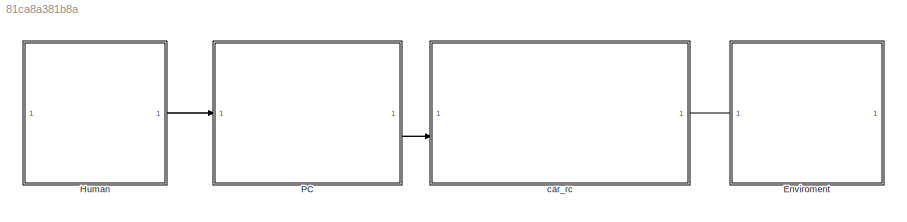
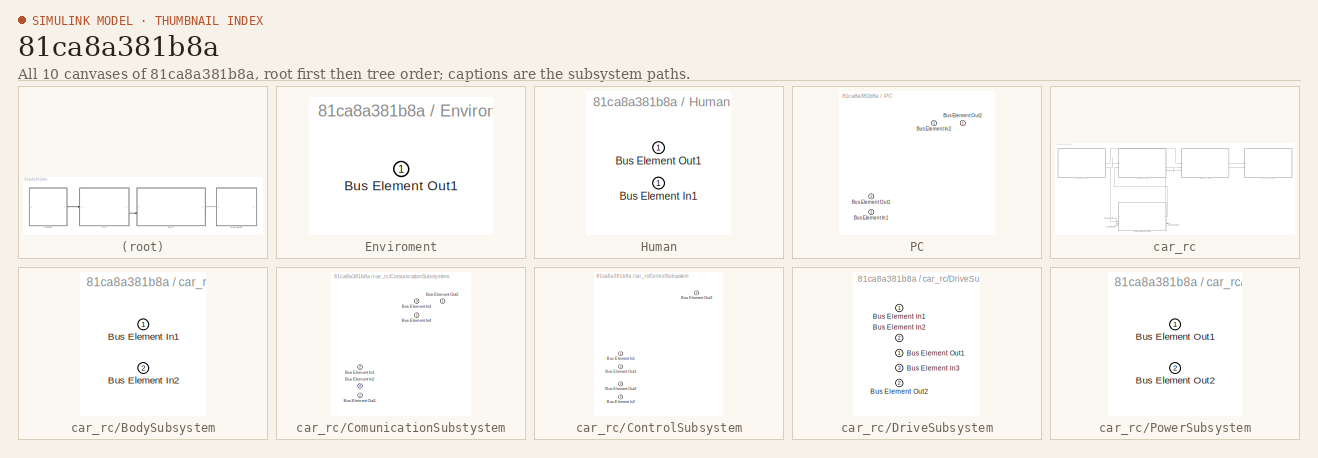
[diagram: thumbnail index - all 10 canvases of the model, root first then tree order]
MODEL slx_81ca8a381b8a
KIND model
CONFIG AbsTol = auto
CONFIG EnableMultiTasking = off
CONFIG FixedStep = auto
CONFIG MaxStep = auto
CONFIG MinStep = auto
CONFIG RelTol = 1e-3
CONFIG SampleTimeConstraint = Unconstrained
CONFIG SolverName = VariableStepAuto
CONFIG StartTime = 0.0
CONFIG StopTime = 10.0
BLOCK [SubSystem] Enviroment
  PortSchema = {"entries":[{"content":{"headerSize":26,"margin":15,"minimumSpacing":25,"sides":[{"content":{"connectorIds":["Out1"]},"type":"ConnectorPlacement.EquallySpacedRectSide","uuid":"a4c63610-ce53-4263-bc32-11f7e141828d"},{"content":{"side":"RIGHT"},"type":"ConnectorPlacement.EquallySpacedRectSide","uuid":"7388023e-6661-4314-a5ba-fe6a68600945"},{"content":{"side":"TOP"},"type":"ConnectorPlacement.Equally...<+247ch>
BLOCK [Outport] Enviroment/Bus Element Out1
BLOCK [SubSystem] Human
  PortSchema = {"entries":[{"content":{"headerSize":26,"margin":15,"minimumSpacing":25,"sides":[{"content":{},"type":"ConnectorPlacement.EquallySpacedRectSide","uuid":"a4c63610-ce53-4263-bc32-11f7e141828d"},{"content":{"connectorIds":["Out1","In1"],"side":"RIGHT"},"type":"ConnectorPlacement.EquallySpacedRectSide","uuid":"7388023e-6661-4314-a5ba-fe6a68600945"},{"content":{"side":"TOP"},"type":"ConnectorPlacement....<+254ch>
BLOCK [Inport] Human/Bus Element In1
BLOCK [Outport] Human/Bus Element Out1
BLOCK [SubSystem] PC
  PortSchema = {"entries":[{"content":{"headerSize":26,"margin":15,"minimumSpacing":25,"sides":[{"content":{"connectorIds":["In1","Out1"]},"type":"ConnectorPlacement.EquallySpacedRectSide","uuid":"a4c63610-ce53-4263-bc32-11f7e141828d"},{"content":{"connectorIds":["Out2","In2"],"side":"RIGHT"},"type":"ConnectorPlacement.EquallySpacedRectSide","uuid":"7388023e-6661-4314-a5ba-fe6a68600945"},{"content":{"side":"TOP"...<+409ch>
BLOCK [Inport] PC/Bus Element In1
  Port = 2
BLOCK [Inport] PC/Bus Element In2
BLOCK [Outport] PC/Bus Element Out1
  Port = 2
BLOCK [Outport] PC/Bus Element Out2
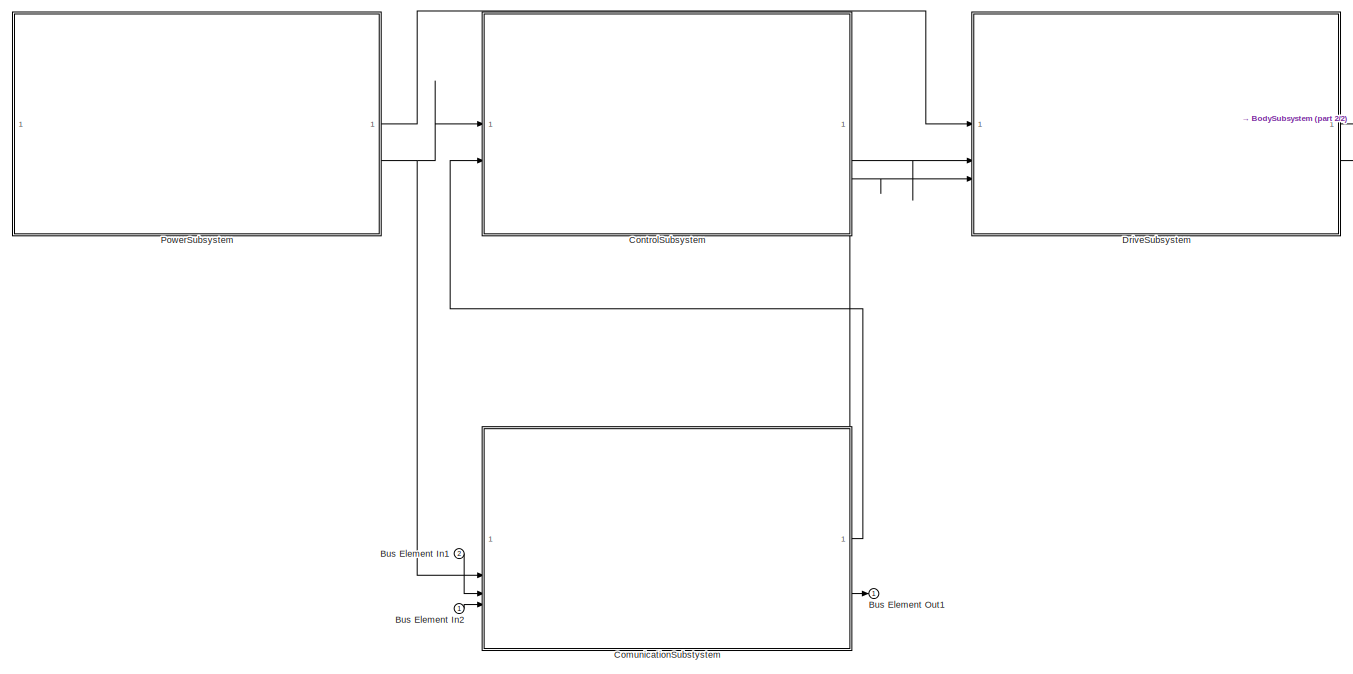
[diagram: car_rc - part 1/2, most of the canvas]
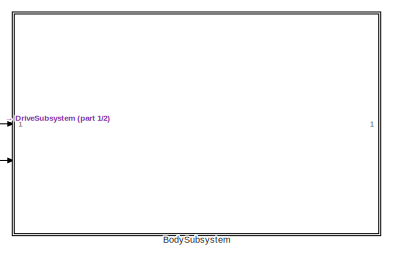
[diagram: car_rc - part 2/2, top right region]
BLOCK [SubSystem] car_rc
  PortSchema = {"entries":[{"content":{"headerSize":26,"margin":15,"minimumSpacing":25,"sides":[{"content":{"connectorIds":["In2","Out1"]},"type":"ConnectorPlacement.EquallySpacedRectSide","uuid":"a4c63610-ce53-4263-bc32-11f7e141828d"},{"content":{"connectorIds":["In1"],"side":"RIGHT"},"type":"ConnectorPlacement.EquallySpacedRectSide","uuid":"7388023e-6661-4314-a5ba-fe6a68600945"},{"content":{"side":"TOP"},"type...<+402ch>
BLOCK [SubSystem] car_rc/BodySubsystem
  PortSchema = {"entries":[{"content":{"headerSize":26,"margin":15,"minimumSpacing":25,"sides":[{"content":{"connectorIds":["In1","In2"]},"type":"ConnectorPlacement.EquallySpacedRectSide","uuid":"a4c63610-ce53-4263-bc32-11f7e141828d"},{"content":{"side":"RIGHT"},"type":"ConnectorPlacement.EquallySpacedRectSide","uuid":"7388023e-6661-4314-a5ba-fe6a68600945"},{"content":{"side":"TOP"},"type":"ConnectorPlacement.Eq...<+252ch>
BLOCK [Inport] car_rc/BodySubsystem/Bus Element In1
BLOCK [Inport] car_rc/BodySubsystem/Bus Element In2
  Port = 2
BLOCK [Inport] car_rc/Bus Element In1
  Port = 2
BLOCK [Inport] car_rc/Bus Element In2
BLOCK [Outport] car_rc/Bus Element Out1
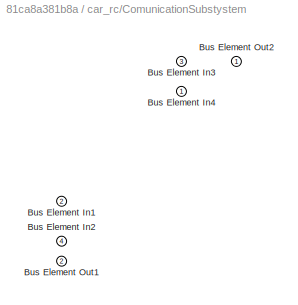
BLOCK [SubSystem] car_rc/ComunicationSubstystem
  PortSchema = {"entries":[{"content":{"headerSize":26,"margin":15,"minimumSpacing":25,"sides":[{"content":{"connectorIds":["In2","In3","In4"]},"type":"ConnectorPlacement.EquallySpacedRectSide","uuid":"a4c63610-ce53-4263-bc32-11f7e141828d"},{"content":{"connectorIds":["Out1","Out2"],"side":"RIGHT"},"type":"ConnectorPlacement.EquallySpacedRectSide","uuid":"7388023e-6661-4314-a5ba-fe6a68600945"},{"content":{"conne...<+312ch>
BLOCK [Inport] car_rc/ComunicationSubstystem/Bus Element In1
  Port = 2
BLOCK [Inport] car_rc/ComunicationSubstystem/Bus Element In2
  Port = 4
BLOCK [Inport] car_rc/ComunicationSubstystem/Bus Element In3
  Port = 3
BLOCK [Inport] car_rc/ComunicationSubstystem/Bus Element In4
BLOCK [Outport] car_rc/ComunicationSubstystem/Bus Element Out1
  Port = 2
BLOCK [Outport] car_rc/ComunicationSubstystem/Bus Element Out2
BLOCK [SubSystem] car_rc/ControlSubsystem
  PortSchema = {"entries":[{"content":{"headerSize":26,"margin":15,"minimumSpacing":25,"sides":[{"content":{"connectorIds":["In1","In2"]},"type":"ConnectorPlacement.EquallySpacedRectSide","uuid":"a4c63610-ce53-4263-bc32-11f7e141828d"},{"content":{"connectorIds":["Out2","Out3"],"side":"RIGHT"},"type":"ConnectorPlacement.EquallySpacedRectSide","uuid":"7388023e-6661-4314-a5ba-fe6a68600945"},{"content":{"side":"TOP"...<+433ch>
BLOCK [Inport] car_rc/ControlSubsystem/Bus Element In1
BLOCK [Inport] car_rc/ControlSubsystem/Bus Element In2
  Port = 2
BLOCK [Outport] car_rc/ControlSubsystem/Bus Element Out1
  Port = 2
BLOCK [Outport] car_rc/ControlSubsystem/Bus Element Out2
  Port = 3
BLOCK [Outport] car_rc/ControlSubsystem/Bus Element Out3
BLOCK [SubSystem] car_rc/DriveSubsystem
  PortSchema = {"entries":[{"content":{"headerSize":26,"margin":15,"minimumSpacing":25,"sides":[{"content":{"connectorIds":["In1","In2","In3"]},"type":"ConnectorPlacement.EquallySpacedRectSide","uuid":"a4c63610-ce53-4263-bc32-11f7e141828d"},{"content":{"connectorIds":["Out1","Out2"],"side":"RIGHT"},"type":"ConnectorPlacement.EquallySpacedRectSide","uuid":"7388023e-6661-4314-a5ba-fe6a68600945"},{"content":{"side"...<+289ch>
BLOCK [Inport] car_rc/DriveSubsystem/Bus Element In1
BLOCK [Inport] car_rc/DriveSubsystem/Bus Element In2
  Port = 2
BLOCK [Inport] car_rc/DriveSubsystem/Bus Element In3
  Port = 3
BLOCK [Outport] car_rc/DriveSubsystem/Bus Element Out1
BLOCK [Outport] car_rc/DriveSubsystem/Bus Element Out2
  Port = 2
BLOCK [SubSystem] car_rc/PowerSubsystem
  PortSchema = {"entries":[{"content":{"headerSize":26,"margin":15,"minimumSpacing":25,"sides":[{"content":{},"type":"ConnectorPlacement.EquallySpacedRectSide","uuid":"a4c63610-ce53-4263-bc32-11f7e141828d"},{"content":{"connectorIds":["Out1","Out2"],"side":"RIGHT"},"type":"ConnectorPlacement.EquallySpacedRectSide","uuid":"7388023e-6661-4314-a5ba-fe6a68600945"},{"content":{"side":"TOP"},"type":"ConnectorPlacement...<+255ch>
BLOCK [Outport] car_rc/PowerSubsystem/Bus Element Out1
BLOCK [Outport] car_rc/PowerSubsystem/Bus Element Out2
  Port = 2
LINE Enviroment:1 -> car_rc:1
LINE Human:1 -> PC:1
LINE PC:1 -> Human:1
LINE PC:2 -> car_rc:2
LINE car_rc/Bus Element In1:1 -> car_rc/ComunicationSubstystem:3
LINE car_rc/Bus Element In2:1 -> car_rc/ComunicationSubstystem:4
LINE car_rc/ComunicationSubstystem:1 -> car_rc/ControlSubsystem:2
LINE car_rc/ComunicationSubstystem:2 -> car_rc/Bus Element Out1:1
LINE car_rc/ControlSubsystem:1 -> car_rc/ComunicationSubstystem:1
LINE car_rc/ControlSubsystem:2 -> car_rc/DriveSubsystem:2
LINE car_rc/ControlSubsystem:3 -> car_rc/DriveSubsystem:3
LINE car_rc/DriveSubsystem:1 -> car_rc/BodySubsystem:1
LINE car_rc/DriveSubsystem:2 -> car_rc/BodySubsystem:2
LINE car_rc/PowerSubsystem:1 -> car_rc/DriveSubsystem:1
NET car_rc/PowerSubsystem:2 -> car_rc/ComunicationSubstystem:2, car_rc/ControlSubsystem:1
LINE car_rc:1 -> PC:2
note: NET lines group one-source signal fan-out (src -> all destinations, sorted); 1:1 wires keep LINE
